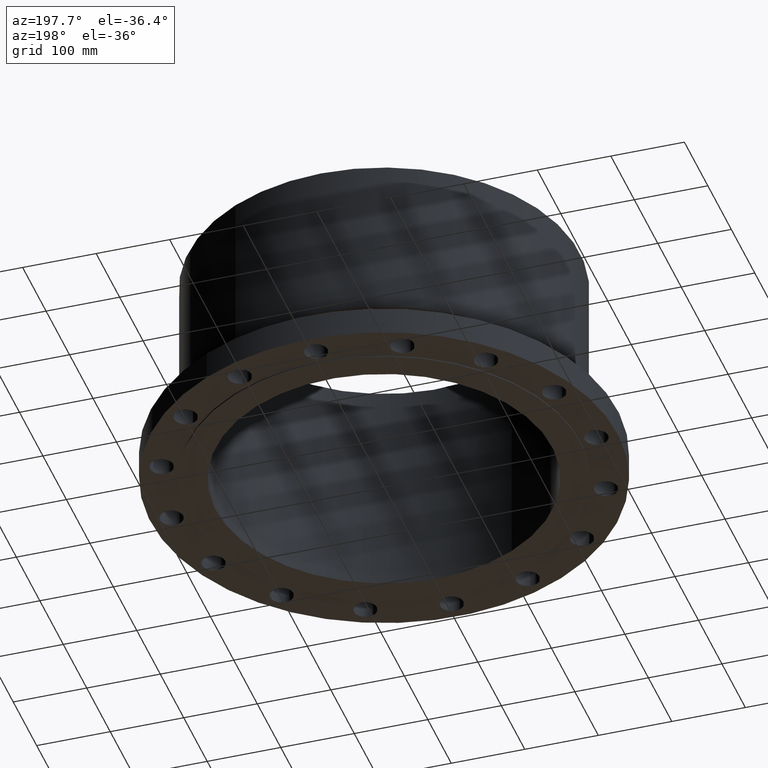
[diagram: clean part render]
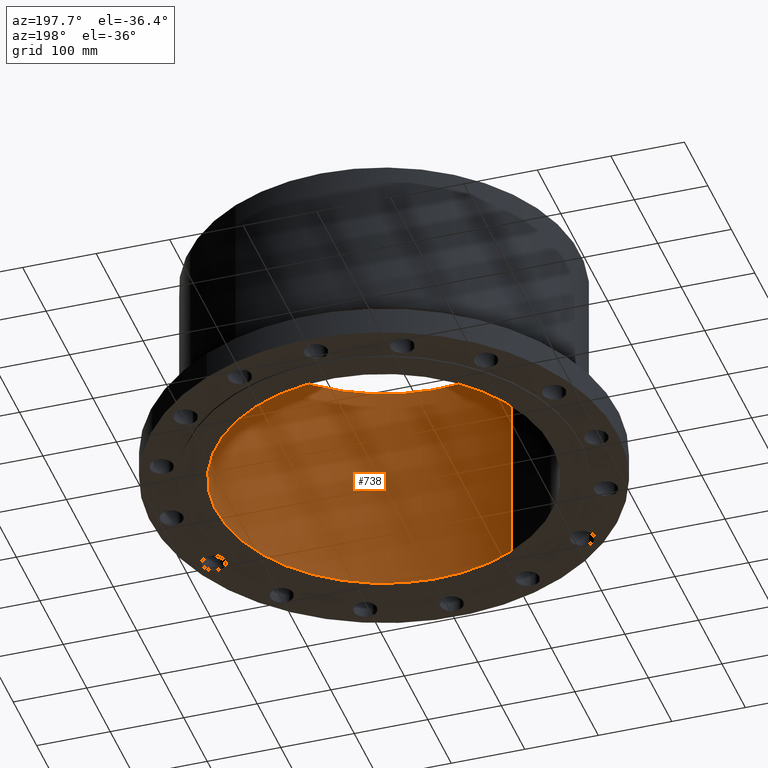
[diagram: same view with one face highlighted and labeled with its STEP entity id]
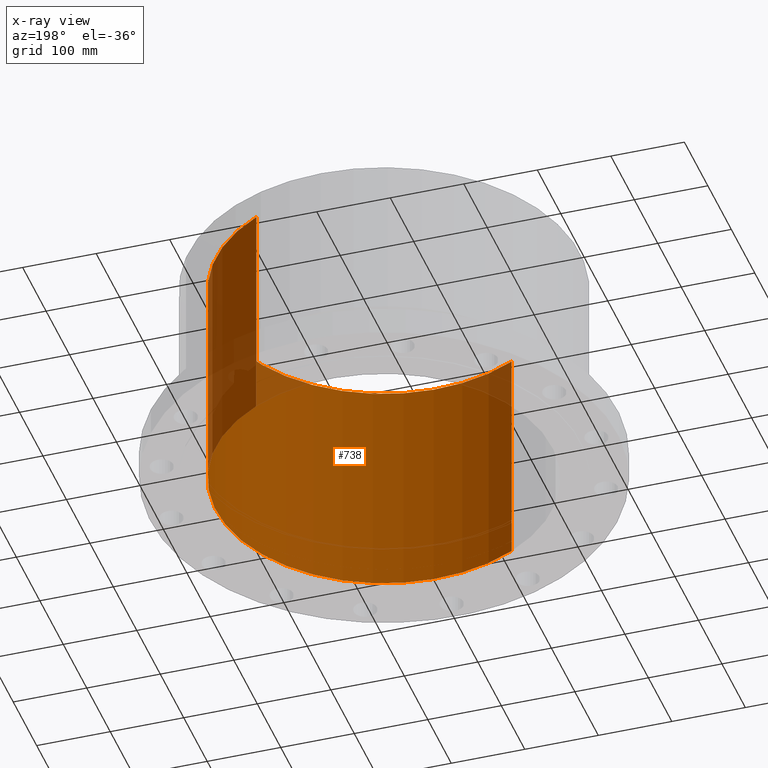
[diagram: x-ray of the same camera — body ghosted, the highlighted face saturated]
A machine part, auxiliary view. The second image highlights one B-rep face of the part: STEP entity #738.
The next image is the same camera in x-ray: the body ghosted, the highlighted face saturated — about 8% of this face is hidden behind the body in this view.
In plain terms, the highlighted cylindrical surface (partial cylindrical patch) has radius 228.6 mm, axis along (0, 0, -1).
Its self-contained STEP definition (entity closure, byte-faithful):
#700=AXIS2_PLACEMENT_3D('Circle Axis2P3D',#698,#699,$) ;
#711=AXIS2_PLACEMENT_3D('Cylinder Axis2P3D',#708,#709,#710) ;
#722=AXIS2_PLACEMENT_3D('Circle Axis2P3D',#720,#721,$) ;
#693=CARTESIAN_POINT('Vertex',(-4.31482984746,-7.89824305704,11.9375)) ;
#695=CARTESIAN_POINT('Vertex',(4.31482984746,7.89824305704,11.9375)) ;
#698=CARTESIAN_POINT('Axis2P3D Location',(0.,0.,11.9375)) ;
#708=CARTESIAN_POINT('Axis2P3D Location',(0.,0.,5.93750000002)) ;
#713=CARTESIAN_POINT('Line Origine',(4.31482984746,7.89824305704,5.93750000002)) ;
#717=CARTESIAN_POINT('Vertex',(4.31482984746,7.89824305704,-0.0625000000003)) ;
#720=CARTESIAN_POINT('Axis2P3D Location',(0.,0.,-0.0625000000003)) ;
#724=CARTESIAN_POINT('Vertex',(-4.31482984746,-7.89824305704,-0.0625000000003)) ;
#727=CARTESIAN_POINT('Line Origine',(-4.31482984746,-7.89824305704,5.93750000002)) ;
#699=DIRECTION('Axis2P3D Direction',(0.,0.,-0.0393700787402)) ;
#709=DIRECTION('Axis2P3D Direction',(0.,0.,-0.0393700787402)) ;
#710=DIRECTION('Axis2P3D XDirection',(-0.0188750212049,-0.0345504945626,0.)) ;
#714=DIRECTION('Vector Direction',(0.,0.,-0.0393700787402)) ;
#721=DIRECTION('Axis2P3D Direction',(0.,0.,-0.0393700787402)) ;
#728=DIRECTION('Vector Direction',(0.,0.,-0.0393700787402)) ;
#715=VECTOR('Line Direction',#714,0.0393700787402) ;
#729=VECTOR('Line Direction',#728,0.0393700787402) ;
#733=ORIENTED_EDGE('',*,*,#702,.F.) ;
#734=ORIENTED_EDGE('',*,*,#719,.T.) ;
#735=ORIENTED_EDGE('',*,*,#726,.T.) ;
#736=ORIENTED_EDGE('',*,*,#731,.F.) ;
#738=ADVANCED_FACE('PartBody',(#737),#712,.F.) ;
#701=CIRCLE('generated circle',#700,9.00000000004) ;
#723=CIRCLE('generated circle',#722,9.00000000004) ;
#712=CYLINDRICAL_SURFACE('generated cylinder',#711,9.00000000004) ;
#702=EDGE_CURVE('',#696,#694,#701,.T.) ;
#719=EDGE_CURVE('',#696,#718,#716,.T.) ;
#726=EDGE_CURVE('',#718,#725,#723,.T.) ;
#731=EDGE_CURVE('',#694,#725,#730,.T.) ;
#732=EDGE_LOOP('',(#733,#734,#735,#736)) ;
#737=FACE_OUTER_BOUND('',#732,.T.) ;
#716=LINE('Line',#713,#715) ;
#730=LINE('Line',#727,#729) ;
#694=VERTEX_POINT('',#693) ;
#696=VERTEX_POINT('',#695) ;
#718=VERTEX_POINT('',#717) ;
#725=VERTEX_POINT('',#724) ;